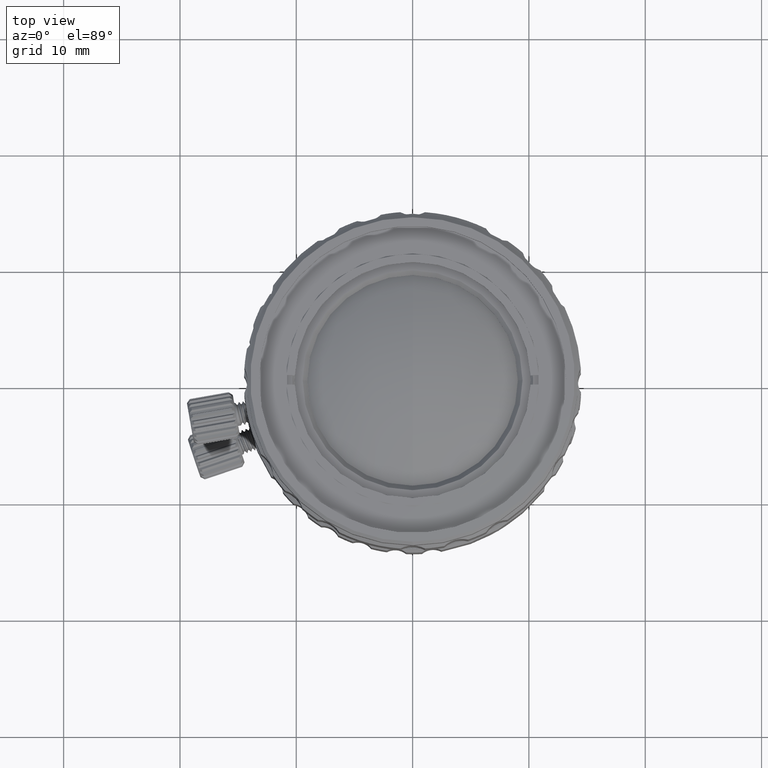
[diagram: clean part render]
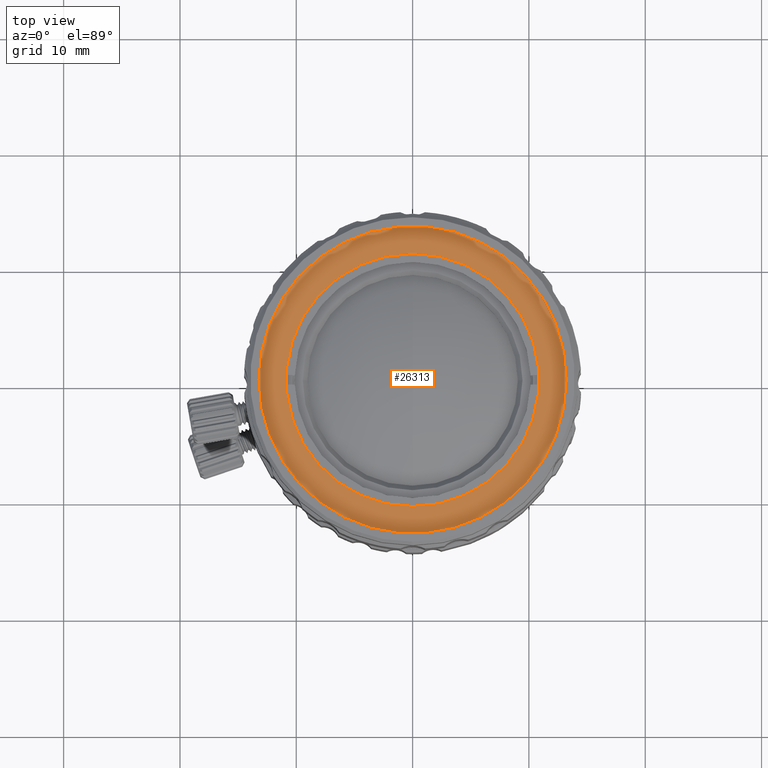
[diagram: same view with one face highlighted and labeled with its STEP entity id]
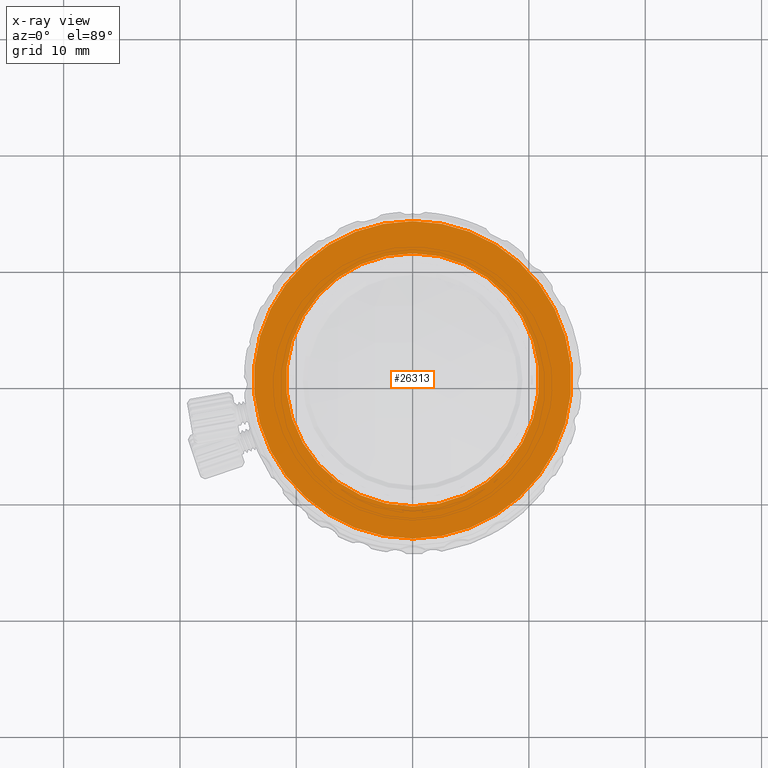
[diagram: x-ray of the same camera — body ghosted, the highlighted face saturated]
A machine part, top view. The second image highlights one B-rep face of the part: STEP entity #26313.
The next image is the same camera in x-ray: the body ghosted, the highlighted face saturated — about 0% of this face is hidden behind the body in this view.
In plain terms, the highlighted planar face has unit normal (0, 0, -1).
Its self-contained STEP definition (entity closure, byte-faithful):
#734 = CARTESIAN_POINT ( 'NONE',  ( -1.332415750722705689E-15, 10.88000027151000104, 35.24000009246999809 ) ) ;
#3954 = CARTESIAN_POINT ( 'NONE',  ( 0.000000000000000000, -13.65000003398999873, 35.24000009246999809 ) ) ;
#3973 = DIRECTION ( 'NONE',  ( 0.000000000000000000, 0.000000000000000000, 1.000000000000000000 ) ) ;
#4218 = PLANE ( 'NONE',  #64512 ) ;
#4244 = CIRCLE ( 'NONE', #55225, 13.65000003398999873 ) ;
#5018 = DIRECTION ( 'NONE',  ( 0.000000000000000000, -1.000000000000000000, 0.000000000000000000 ) ) ;
#5059 = EDGE_CURVE ( 'NONE', #44087, #32927, #4244, .T. ) ;
#7637 = EDGE_LOOP ( 'NONE', ( #18192, #62894 ) ) ;
#9191 = CARTESIAN_POINT ( 'NONE',  ( 0.000000000000000000, 0.000000000000000000, 35.24000009246999809 ) ) ;
#10747 = VERTEX_POINT ( 'NONE', #15299 ) ;
#12122 = AXIS2_PLACEMENT_3D ( 'NONE', #9191, #3973, #5018 ) ;
#14313 = ORIENTED_EDGE ( 'NONE', *, *, #5059, .F. ) ;
#15299 = CARTESIAN_POINT ( 'NONE',  ( 0.000000000000000000, -10.88000027151000104, 35.24000009246999809 ) ) ;
#18192 = ORIENTED_EDGE ( 'NONE', *, *, #21204, .F. ) ;
#18511 = VERTEX_POINT ( 'NONE', #734 ) ;
#19212 = EDGE_CURVE ( 'NONE', #32927, #44087, #51020, .T. ) ;
#21204 = EDGE_CURVE ( 'NONE', #10747, #18511, #27669, .T. ) ;
#26313 = ADVANCED_FACE ( 'NONE', ( #30630, #51799 ), #4218, .F. ) ;
#26804 = DIRECTION ( 'NONE',  ( 0.000000000000000000, 0.000000000000000000, -1.000000000000000000 ) ) ;
#27669 = CIRCLE ( 'NONE', #12122, 10.88000027151000104 ) ;
#30533 = EDGE_LOOP ( 'NONE', ( #39195, #14313 ) ) ;
#30630 = FACE_OUTER_BOUND ( 'NONE', #30533, .T. ) ;
#32723 = CIRCLE ( 'NONE', #54896, 10.88000027151000104 ) ;
#32927 = VERTEX_POINT ( 'NONE', #3954 ) ;
#37563 = DIRECTION ( 'NONE',  ( 0.000000000000000000, -1.000000000000000000, 0.000000000000000000 ) ) ;
#37902 = DIRECTION ( 'NONE',  ( 0.000000000000000000, 0.000000000000000000, 1.000000000000000000 ) ) ;
#38512 = DIRECTION ( 'NONE',  ( 0.000000000000000000, -1.000000000000000000, 0.000000000000000000 ) ) ;
#39195 = ORIENTED_EDGE ( 'NONE', *, *, #19212, .F. ) ;
#44030 = EDGE_CURVE ( 'NONE', #18511, #10747, #32723, .T. ) ;
#44087 = VERTEX_POINT ( 'NONE', #62176 ) ;
#46036 = CARTESIAN_POINT ( 'NONE',  ( 0.000000000000000000, 0.000000000000000000, 35.24000009246999809 ) ) ;
#48627 = CARTESIAN_POINT ( 'NONE',  ( 0.000000000000000000, 0.000000000000000000, 35.24000009246999809 ) ) ;
#49881 = AXIS2_PLACEMENT_3D ( 'NONE', #46036, #57484, #57826 ) ;
#51020 = CIRCLE ( 'NONE', #49881, 13.65000003398999873 ) ;
#51799 = FACE_BOUND ( 'NONE', #7637, .T. ) ;
#53177 = CARTESIAN_POINT ( 'NONE',  ( 0.000000000000000000, 0.000000000000000000, 35.24000009246999809 ) ) ;
#54896 = AXIS2_PLACEMENT_3D ( 'NONE', #48627, #37902, #59366 ) ;
#55225 = AXIS2_PLACEMENT_3D ( 'NONE', #59315, #60679, #38512 ) ;
#57484 = DIRECTION ( 'NONE',  ( 0.000000000000000000, 0.000000000000000000, -1.000000000000000000 ) ) ;
#57826 = DIRECTION ( 'NONE',  ( 0.000000000000000000, -1.000000000000000000, 0.000000000000000000 ) ) ;
#59315 = CARTESIAN_POINT ( 'NONE',  ( 0.000000000000000000, 0.000000000000000000, 35.24000009246999809 ) ) ;
#59366 = DIRECTION ( 'NONE',  ( 0.000000000000000000, -1.000000000000000000, 0.000000000000000000 ) ) ;
#60679 = DIRECTION ( 'NONE',  ( 0.000000000000000000, 0.000000000000000000, -1.000000000000000000 ) ) ;
#62176 = CARTESIAN_POINT ( 'NONE',  ( -1.671642884998711549E-15, 13.65000003398999873, 35.24000009246999809 ) ) ;
#62894 = ORIENTED_EDGE ( 'NONE', *, *, #44030, .F. ) ;
#64512 = AXIS2_PLACEMENT_3D ( 'NONE', #53177, #26804, #37563 ) ;